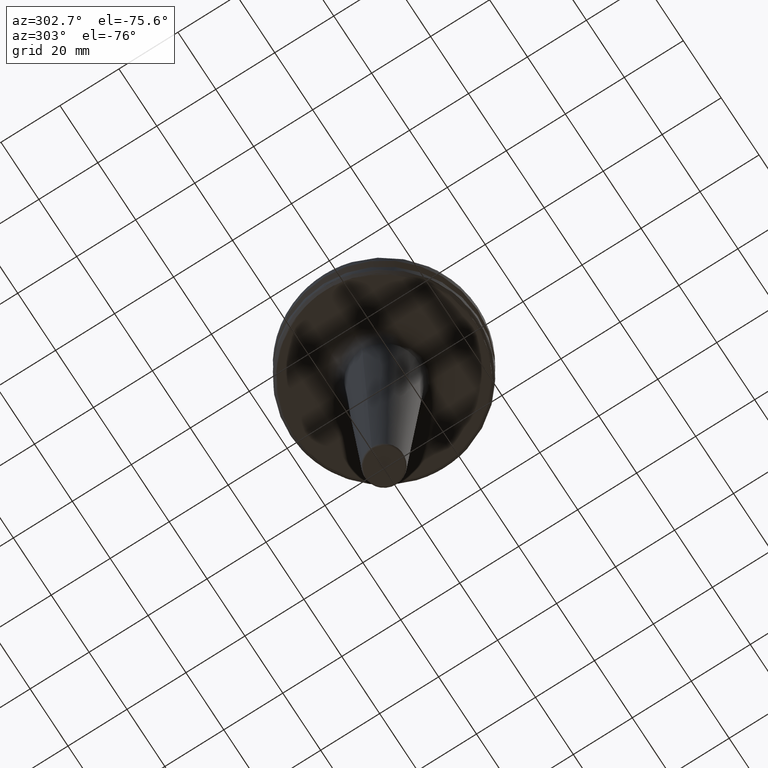
[diagram: clean part render]
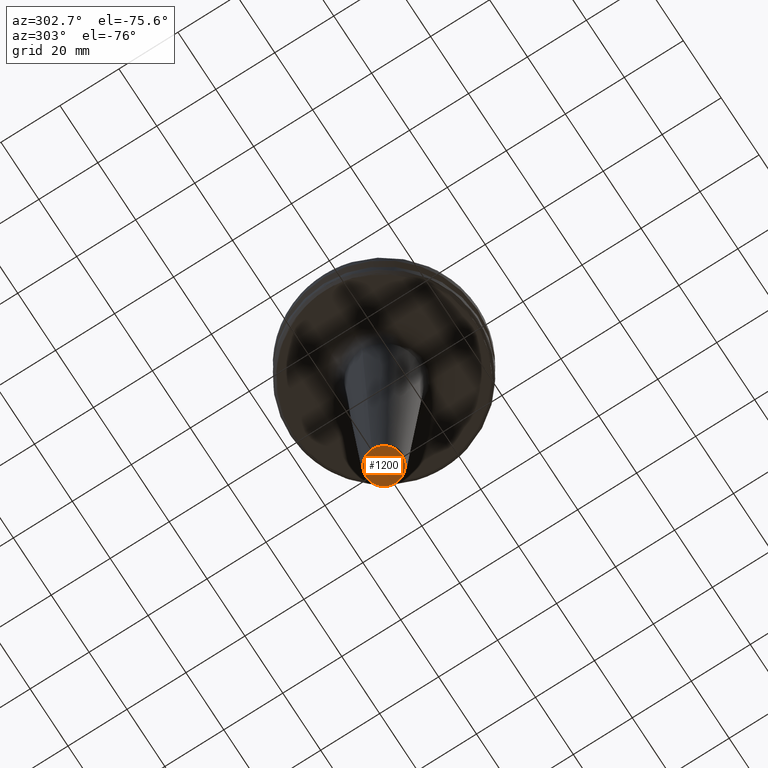
[diagram: same view with one face highlighted and labeled with its STEP entity id]
A machine part, auxiliary view. The second image highlights one B-rep face of the part: STEP entity #1200.
In plain terms, the highlighted planar face has unit normal (0, 0, -1).
Its self-contained STEP definition (entity closure, byte-faithful):
#173 = FACE_OUTER_BOUND ( 'NONE', #2163, .T. ) ;
#202 = CARTESIAN_POINT ( 'NONE',  ( -6.025517716642559300, 0.0000000000000000000, -120.0000000000000000 ) ) ;
#394 = CARTESIAN_POINT ( 'NONE',  ( 6.025517716642559300, 7.896925542888799100E-016, -120.0000000000000000 ) ) ;
#400 = PLANE ( 'NONE',  #2719 ) ;
#603 = CARTESIAN_POINT ( 'NONE',  ( -6.025517716642559300, 0.0000000000000000000, -120.0000000000000000 ) ) ;
#623 = CARTESIAN_POINT ( 'NONE',  ( -6.025517716642559300, 12.05103543328511700, -120.0000000000000100 ) ) ;
#692 = EDGE_CURVE ( 'NONE', #2399, #2118, #1867, .T. ) ;
#747 = EDGE_CURVE ( 'NONE', #2118, #2399, #1624, .T. ) ;
#804 = CARTESIAN_POINT ( 'NONE',  ( -6.025517716642559300, -12.05103543328511700, -120.0000000000000100 ) ) ;
#1095 = DIRECTION ( 'NONE',  ( -1.000000000000000000, 0.0000000000000000000, -0.0000000000000000000 ) ) ;
#1200 = ADVANCED_FACE ( 'NONE', ( #173 ), #400, .T. ) ;
#1528 = CARTESIAN_POINT ( 'NONE',  ( 6.025517716642561100, -12.05103543328511700, -120.0000000000000100 ) ) ;
#1624 =( BOUNDED_CURVE ( )  B_SPLINE_CURVE ( 3, ( #394, #1785, #623, #2250 ),
 .UNSPECIFIED., .F., .F. ) 
 B_SPLINE_CURVE_WITH_KNOTS ( ( 4, 4 ),
 ( 0.0000000000000000000, 1.000000000000000000 ),
 .UNSPECIFIED. ) 
 CURVE ( )  GEOMETRIC_REPRESENTATION_ITEM ( )  RATIONAL_B_SPLINE_CURVE ( ( 1.000000000000000000, 0.3333333333333333700, 0.3333333333333333700, 1.000000000000000000 ) ) 
 REPRESENTATION_ITEM ( '' )  );
#1785 = CARTESIAN_POINT ( 'NONE',  ( 6.025517716642558400, 12.05103543328511700, -120.0000000000000100 ) ) ;
#1867 =( BOUNDED_CURVE ( )  B_SPLINE_CURVE ( 3, ( #603, #804, #1528, #2231 ),
 .UNSPECIFIED., .F., .F. ) 
 B_SPLINE_CURVE_WITH_KNOTS ( ( 4, 4 ),
 ( 0.0000000000000000000, 1.000000000000000000 ),
 .UNSPECIFIED. ) 
 CURVE ( )  GEOMETRIC_REPRESENTATION_ITEM ( )  RATIONAL_B_SPLINE_CURVE ( ( 1.000000000000000000, 0.3333333333333333700, 0.3333333333333333700, 1.000000000000000000 ) ) 
 REPRESENTATION_ITEM ( '' )  );
#2064 = CARTESIAN_POINT ( 'NONE',  ( 6.025517716642559300, 7.896925542888799100E-016, -120.0000000000000000 ) ) ;
#2118 = VERTEX_POINT ( 'NONE', #2064 ) ;
#2163 = EDGE_LOOP ( 'NONE', ( #2227, #2559 ) ) ;
#2227 = ORIENTED_EDGE ( 'NONE', *, *, #747, .F. ) ;
#2231 = CARTESIAN_POINT ( 'NONE',  ( 6.025517716642559300, 7.896925542888799100E-016, -120.0000000000000000 ) ) ;
#2250 = CARTESIAN_POINT ( 'NONE',  ( -6.025517716642559300, 0.0000000000000000000, -120.0000000000000000 ) ) ;
#2399 = VERTEX_POINT ( 'NONE', #202 ) ;
#2479 = DIRECTION ( 'NONE',  ( 0.0000000000000000000, 0.0000000000000000000, -1.000000000000000000 ) ) ;
#2559 = ORIENTED_EDGE ( 'NONE', *, *, #692, .F. ) ;
#2621 = CARTESIAN_POINT ( 'NONE',  ( 0.0000000000000000000, -6.500000000000000900, -120.0000000000000000 ) ) ;
#2719 = AXIS2_PLACEMENT_3D ( 'NONE', #2621, #2479, #1095 ) ;